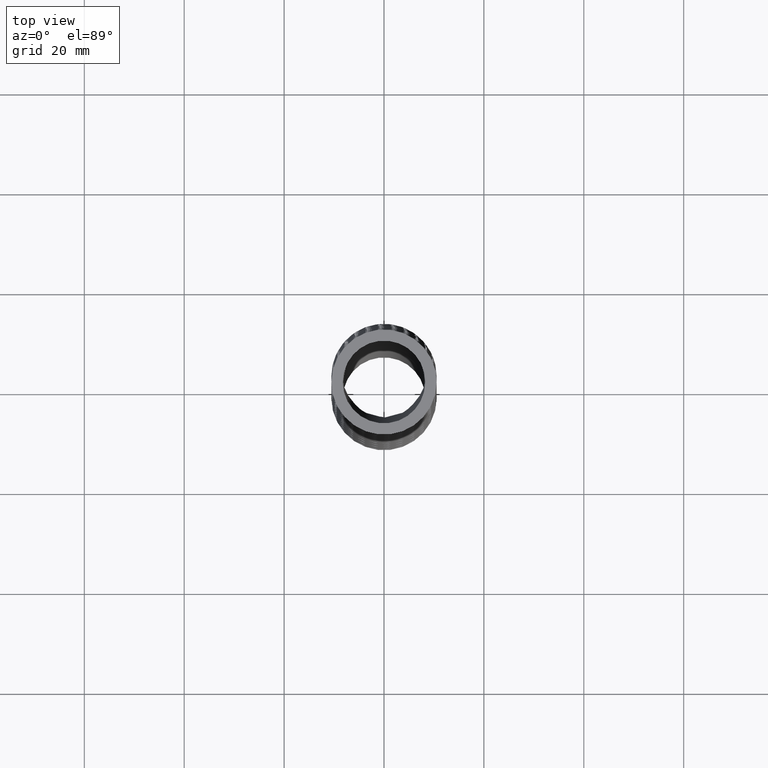
[diagram: clean part render]
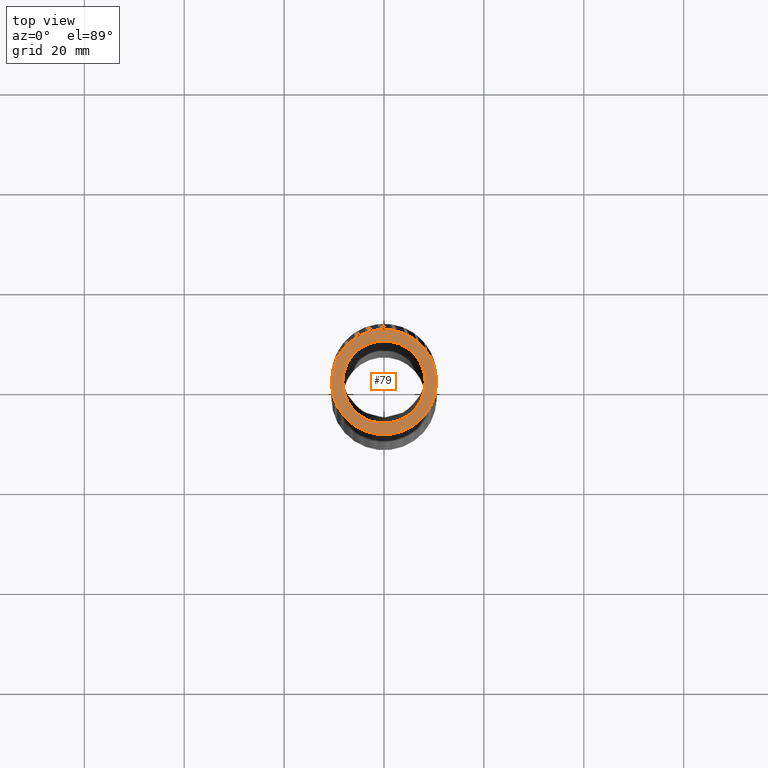
[diagram: same view with one face highlighted and labeled with its STEP entity id]
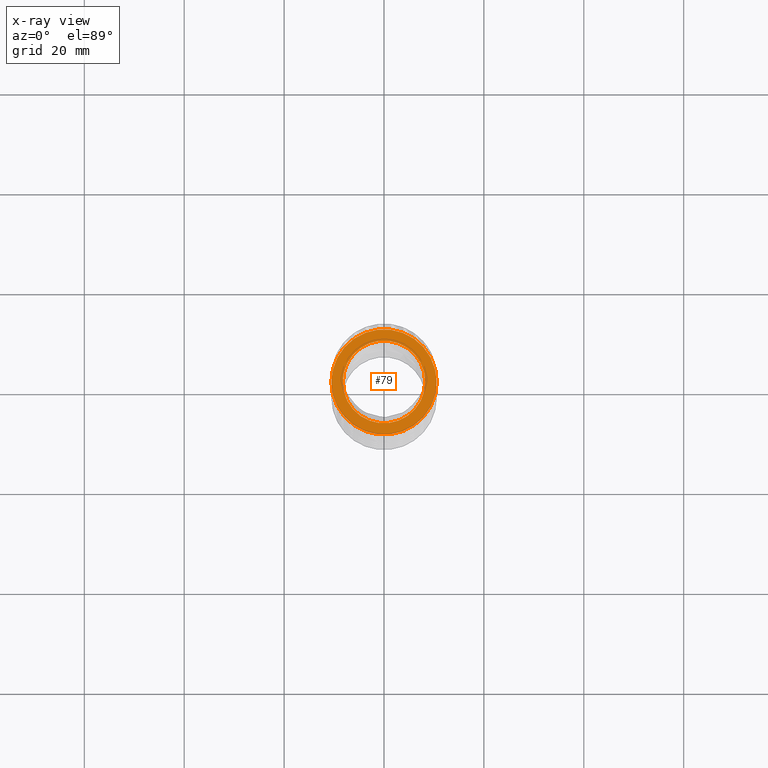
[diagram: x-ray of the same camera — body ghosted, the highlighted face saturated]
A machine part, top view. The second image highlights one B-rep face of the part: STEP entity #79.
The next image is the same camera in x-ray: the body ghosted, the highlighted face saturated — about 0% of this face is hidden behind the body in this view.
In plain terms, the highlighted planar face has unit normal (0, 0, 1).
Its self-contained STEP definition (entity closure, byte-faithful):
#44 = EDGE_CURVE ( 'NONE', #16360, #16362, #7740, .T. ) ;
#65 = EDGE_LOOP ( 'NONE', ( #67, #69 ) ) ;
#66 = ORIENTED_EDGE ( 'NONE', *, *, #70, .F. ) ;
#67 = ORIENTED_EDGE ( 'NONE', *, *, #44, .T. ) ;
#69 = ORIENTED_EDGE ( 'NONE', *, *, #16361, .T. ) ;
#70 = EDGE_CURVE ( 'NONE', #595, #596, #7937, .T. ) ;
#77 = ORIENTED_EDGE ( 'NONE', *, *, #593, .F. ) ;
#79 = ADVANCED_FACE ( 'NONE', ( #7957, #7960 ), #7993, .T. ) ;
#80 = EDGE_LOOP ( 'NONE', ( #77, #66 ) ) ;
#593 = EDGE_CURVE ( 'NONE', #596, #595, #9024, .T. ) ;
#595 = VERTEX_POINT ( 'NONE', #9031 ) ;
#596 = VERTEX_POINT ( 'NONE', #9019 ) ;
#2572 = DIRECTION ( 'NONE',  ( 1.000000000000000000, 0.0000000000000000000, 0.0000000000000000000 ) ) ;
#2573 = DIRECTION ( 'NONE',  ( 0.0000000000000000000, 0.0000000000000000000, 1.000000000000000000 ) ) ;
#2574 = AXIS2_PLACEMENT_3D ( 'NONE', #2583, #2573, #2572 ) ;
#2575 = CIRCLE ( 'NONE', #2574, 0.4150000000000000900 ) ;
#2576 = CARTESIAN_POINT ( 'NONE',  ( -0.4150000000000000900, 5.082284216461516900E-017, 0.0000000000000000000 ) ) ;
#2581 = CARTESIAN_POINT ( 'NONE',  ( 0.4150000000000000900, 0.0000000000000000000, 0.0000000000000000000 ) ) ;
#2583 = CARTESIAN_POINT ( 'NONE',  ( 0.0000000000000000000, 0.0000000000000000000, 0.0000000000000000000 ) ) ;
#7736 = DIRECTION ( 'NONE',  ( 1.000000000000000000, 0.0000000000000000000, 0.0000000000000000000 ) ) ;
#7737 = DIRECTION ( 'NONE',  ( 0.0000000000000000000, 0.0000000000000000000, 1.000000000000000000 ) ) ;
#7738 = CARTESIAN_POINT ( 'NONE',  ( 0.0000000000000000000, 0.0000000000000000000, 0.0000000000000000000 ) ) ;
#7739 = AXIS2_PLACEMENT_3D ( 'NONE', #7738, #7737, #7736 ) ;
#7740 = CIRCLE ( 'NONE', #7739, 0.4150000000000000900 ) ;
#7933 = DIRECTION ( 'NONE',  ( 1.000000000000000000, 0.0000000000000000000, 0.0000000000000000000 ) ) ;
#7934 = DIRECTION ( 'NONE',  ( 0.0000000000000000000, 0.0000000000000000000, 1.000000000000000000 ) ) ;
#7935 = CARTESIAN_POINT ( 'NONE',  ( 0.0000000000000000000, 0.0000000000000000000, 0.0000000000000000000 ) ) ;
#7936 = AXIS2_PLACEMENT_3D ( 'NONE', #7935, #7934, #7933 ) ;
#7937 = CIRCLE ( 'NONE', #7936, 0.3250000000000000100 ) ;
#7957 = FACE_BOUND ( 'NONE', #80, .T. ) ;
#7960 = FACE_OUTER_BOUND ( 'NONE', #65, .T. ) ;
#7989 = DIRECTION ( 'NONE',  ( 1.000000000000000000, 0.0000000000000000000, 0.0000000000000000000 ) ) ;
#7990 = DIRECTION ( 'NONE',  ( 0.0000000000000000000, 0.0000000000000000000, 1.000000000000000000 ) ) ;
#7991 = CARTESIAN_POINT ( 'NONE',  ( 0.0000000000000000000, 0.0000000000000000000, 0.0000000000000000000 ) ) ;
#7992 = AXIS2_PLACEMENT_3D ( 'NONE', #7991, #7990, #7989 ) ;
#7993 = PLANE ( 'NONE',  #7992 ) ;
#9019 = CARTESIAN_POINT ( 'NONE',  ( 0.3250000000000000100, 0.0000000000000000000, 0.0000000000000000000 ) ) ;
#9020 = DIRECTION ( 'NONE',  ( 1.000000000000000000, 0.0000000000000000000, 0.0000000000000000000 ) ) ;
#9021 = DIRECTION ( 'NONE',  ( 0.0000000000000000000, 0.0000000000000000000, 1.000000000000000000 ) ) ;
#9022 = CARTESIAN_POINT ( 'NONE',  ( 0.0000000000000000000, 0.0000000000000000000, 0.0000000000000000000 ) ) ;
#9023 = AXIS2_PLACEMENT_3D ( 'NONE', #9022, #9021, #9020 ) ;
#9024 = CIRCLE ( 'NONE', #9023, 0.3250000000000000100 ) ;
#9031 = CARTESIAN_POINT ( 'NONE',  ( -0.3250000000000000100, 3.980102097228898400E-017, 0.0000000000000000000 ) ) ;
#16360 = VERTEX_POINT ( 'NONE', #2581 ) ;
#16361 = EDGE_CURVE ( 'NONE', #16362, #16360, #2575, .T. ) ;
#16362 = VERTEX_POINT ( 'NONE', #2576 ) ;